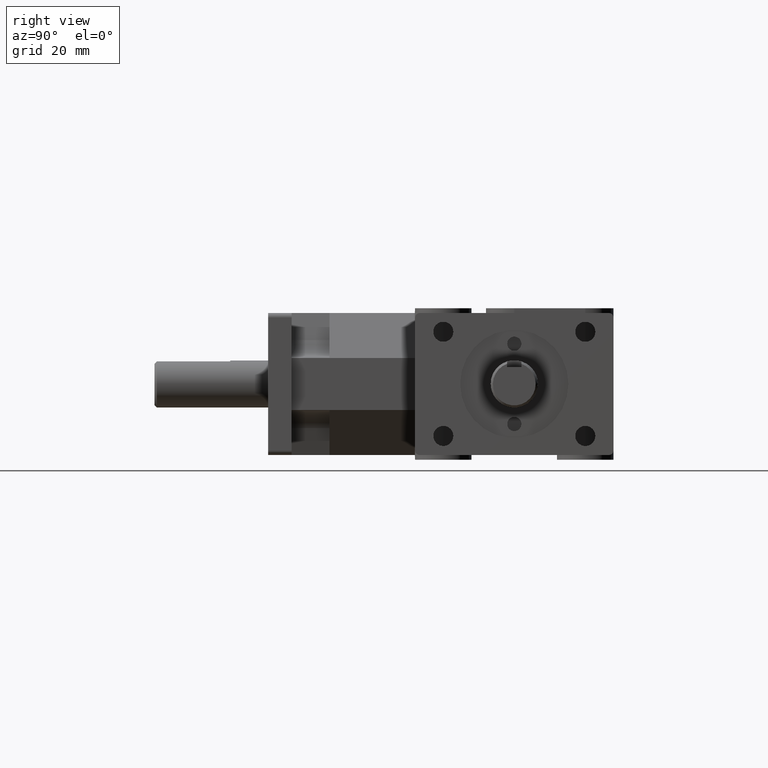
[diagram: clean part render]
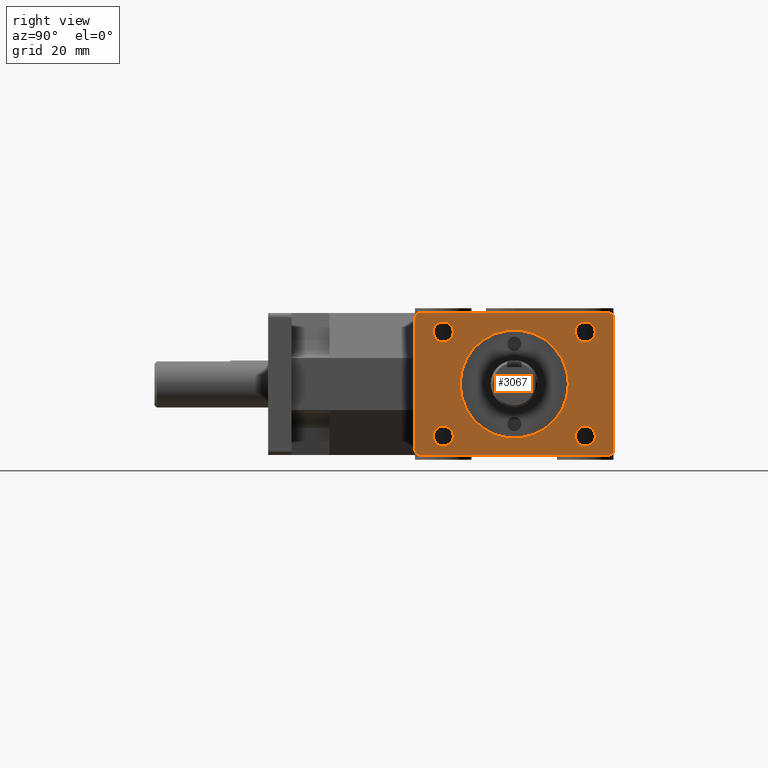
[diagram: same view with one face highlighted and labeled with its STEP entity id]
A machine part, right view. The second image highlights one B-rep face of the part: STEP entity #3067.
In plain terms, the highlighted planar face has unit normal (1, 0, 0).
Its self-contained STEP definition (entity closure, byte-faithful):
#54=FACE_BOUND('',#536,.T.);
#55=FACE_BOUND('',#537,.T.);
#56=FACE_BOUND('',#538,.T.);
#57=FACE_BOUND('',#539,.T.);
#58=FACE_BOUND('',#540,.T.);
#168=PLANE('',#3379);
#337=FACE_OUTER_BOUND('',#535,.T.);
#535=EDGE_LOOP('',(#2785,#2786,#2787,#2788,#2789,#2790,#2791,#2792));
#536=EDGE_LOOP('',(#2793));
#537=EDGE_LOOP('',(#2794));
#538=EDGE_LOOP('',(#2795));
#539=EDGE_LOOP('',(#2796));
#540=EDGE_LOOP('',(#2797));
#602=LINE('',#4486,#898);
#788=LINE('',#5019,#1084);
#844=LINE('',#5149,#1140);
#851=LINE('',#5160,#1147);
#898=VECTOR('',#3595,1.);
#1084=VECTOR('',#4107,1.);
#1140=VECTOR('',#4245,1.);
#1147=VECTOR('',#4260,1.);
#1166=CIRCLE('',#3119,0.714);
#1173=CIRCLE('',#3131,0.06);
#1175=CIRCLE('',#3134,0.06);
#1177=CIRCLE('',#3137,0.06);
#1179=CIRCLE('',#3140,0.06);
#1240=CIRCLE('',#3273,0.1325);
#1241=CIRCLE('',#3275,0.1325);
#1242=CIRCLE('',#3277,0.1325);
#1243=CIRCLE('',#3279,0.1325);
#1295=VERTEX_POINT('',#4333);
#1302=VERTEX_POINT('',#4354);
#1303=VERTEX_POINT('',#4355);
#1306=VERTEX_POINT('',#4363);
#1307=VERTEX_POINT('',#4364);
#1310=VERTEX_POINT('',#4372);
#1311=VERTEX_POINT('',#4373);
#1314=VERTEX_POINT('',#4381);
#1315=VERTEX_POINT('',#4382);
#1477=VERTEX_POINT('',#4846);
#1478=VERTEX_POINT('',#4850);
#1479=VERTEX_POINT('',#4854);
#1480=VERTEX_POINT('',#4858);
#1580=EDGE_CURVE('',#1295,#1295,#1166,.T.);
#1589=EDGE_CURVE('',#1302,#1303,#1173,.T.);
#1593=EDGE_CURVE('',#1306,#1307,#1175,.T.);
#1597=EDGE_CURVE('',#1310,#1311,#1177,.T.);
#1601=EDGE_CURVE('',#1314,#1315,#1179,.T.);
#1650=EDGE_CURVE('',#1302,#1315,#602,.T.);
#1831=EDGE_CURVE('',#1477,#1477,#1240,.T.);
#1833=EDGE_CURVE('',#1478,#1478,#1241,.T.);
#1835=EDGE_CURVE('',#1479,#1479,#1242,.T.);
#1837=EDGE_CURVE('',#1480,#1480,#1243,.T.);
#1909=EDGE_CURVE('',#1314,#1311,#788,.T.);
#1978=EDGE_CURVE('',#1306,#1303,#844,.T.);
#1985=EDGE_CURVE('',#1307,#1310,#851,.T.);
#2785=ORIENTED_EDGE('',*,*,#1589,.F.);
#2786=ORIENTED_EDGE('',*,*,#1650,.T.);
#2787=ORIENTED_EDGE('',*,*,#1601,.F.);
#2788=ORIENTED_EDGE('',*,*,#1909,.T.);
#2789=ORIENTED_EDGE('',*,*,#1597,.F.);
#2790=ORIENTED_EDGE('',*,*,#1985,.F.);
#2791=ORIENTED_EDGE('',*,*,#1593,.F.);
#2792=ORIENTED_EDGE('',*,*,#1978,.T.);
#2793=ORIENTED_EDGE('',*,*,#1831,.T.);
#2794=ORIENTED_EDGE('',*,*,#1833,.T.);
#2795=ORIENTED_EDGE('',*,*,#1835,.T.);
#2796=ORIENTED_EDGE('',*,*,#1837,.T.);
#2797=ORIENTED_EDGE('',*,*,#1580,.T.);
#3067=ADVANCED_FACE('',(#337,#54,#55,#56,#57,#58),#168,.T.);
#3119=AXIS2_PLACEMENT_3D('',#4334,#3454,#3455);
#3131=AXIS2_PLACEMENT_3D('',#4356,#3480,#3481);
#3134=AXIS2_PLACEMENT_3D('',#4365,#3488,#3489);
#3137=AXIS2_PLACEMENT_3D('',#4374,#3496,#3497);
#3140=AXIS2_PLACEMENT_3D('',#4383,#3504,#3505);
#3273=AXIS2_PLACEMENT_3D('',#4847,#3939,#3940);
#3275=AXIS2_PLACEMENT_3D('',#4851,#3944,#3945);
#3277=AXIS2_PLACEMENT_3D('',#4855,#3949,#3950);
#3279=AXIS2_PLACEMENT_3D('',#4859,#3954,#3955);
#3379=AXIS2_PLACEMENT_3D('',#5159,#4258,#4259);
#3454=DIRECTION('center_axis',(-1.,0.,0.));
#3455=DIRECTION('ref_axis',(0.,1.,0.));
#3480=DIRECTION('center_axis',(-1.,0.,0.));
#3481=DIRECTION('ref_axis',(0.,-0.707106781186545,0.70710678118655));
#3488=DIRECTION('center_axis',(-1.,0.,0.));
#3489=DIRECTION('ref_axis',(0.,0.70710678118655,0.707106781186545));
#3496=DIRECTION('center_axis',(-1.,0.,0.));
#3497=DIRECTION('ref_axis',(0.,0.70710678118655,-0.707106781186545));
#3504=DIRECTION('center_axis',(-1.,0.,0.));
#3505=DIRECTION('ref_axis',(0.,-0.707106781186545,-0.70710678118655));
#3595=DIRECTION('',(0.,0.,-1.));
#3939=DIRECTION('center_axis',(-1.,0.,0.));
#3940=DIRECTION('ref_axis',(0.,1.,0.));
#3944=DIRECTION('center_axis',(-1.,0.,0.));
#3945=DIRECTION('ref_axis',(0.,1.,0.));
#3949=DIRECTION('center_axis',(-1.,0.,0.));
#3950=DIRECTION('ref_axis',(0.,1.,0.));
#3954=DIRECTION('center_axis',(-1.,0.,0.));
#3955=DIRECTION('ref_axis',(0.,1.,0.));
#4107=DIRECTION('',(0.,1.,0.));
#4245=DIRECTION('',(0.,-1.,0.));
#4258=DIRECTION('center_axis',(1.,0.,0.));
#4259=DIRECTION('ref_axis',(0.,-1.,0.));
#4260=DIRECTION('',(0.,0.,-1.));
#4333=CARTESIAN_POINT('',(2.125,2.536,8.7439781459121E-17));
#4334=CARTESIAN_POINT('Origin',(2.125,3.25,0.));
#4354=CARTESIAN_POINT('',(2.125,1.94,0.8775));
#4355=CARTESIAN_POINT('',(2.125,2.,0.9375));
#4356=CARTESIAN_POINT('Origin',(2.125,2.,0.8775));
#4363=CARTESIAN_POINT('',(2.125,4.5,0.9375));
#4364=CARTESIAN_POINT('',(2.125,4.56,0.8775));
#4365=CARTESIAN_POINT('Origin',(2.125,4.5,0.8775));
#4372=CARTESIAN_POINT('',(2.125,4.56,-0.8775));
#4373=CARTESIAN_POINT('',(2.125,4.5,-0.9375));
#4374=CARTESIAN_POINT('Origin',(2.125,4.5,-0.8775));
#4381=CARTESIAN_POINT('',(2.125,2.,-0.9375));
#4382=CARTESIAN_POINT('',(2.125,1.94,-0.8775));
#4383=CARTESIAN_POINT('Origin',(2.125,2.,-0.8775));
#4486=CARTESIAN_POINT('',(2.125,1.94,0.));
#4846=CARTESIAN_POINT('',(2.125,4.055,0.6875));
#4847=CARTESIAN_POINT('Origin',(2.125,4.1875,0.6875));
#4850=CARTESIAN_POINT('',(2.125,4.055,-0.6875));
#4851=CARTESIAN_POINT('Origin',(2.125,4.1875,-0.6875));
#4854=CARTESIAN_POINT('',(2.125,2.18,-0.6875));
#4855=CARTESIAN_POINT('Origin',(2.125,2.3125,-0.6875));
#4858=CARTESIAN_POINT('',(2.125,2.18,0.6875));
#4859=CARTESIAN_POINT('Origin',(2.125,2.3125,0.6875));
#5019=CARTESIAN_POINT('',(2.125,4.56,-0.9375));
#5149=CARTESIAN_POINT('',(2.125,4.56,0.9375));
#5159=CARTESIAN_POINT('Origin',(2.125,1.94,0.));
#5160=CARTESIAN_POINT('',(2.125,4.56,0.));